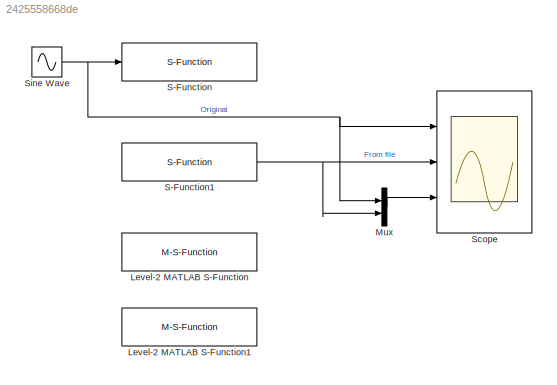
MODEL slx_2425558668de
KIND model
BLOCK [M-S-Function] Level-2 MATLAB S-Function
  Commented = on
  FunctionName = filesink_msfun
  Parameters = 'testfile'
  Ports = [1]
BLOCK [M-S-Function] Level-2 MATLAB S-Function1
  Commented = on
  FunctionName = filesource_msfun
  Parameters = 'testfile' 0
  Ports = [0, 1]
BLOCK [Mux] Mux
  DisplayOption = bar
  Inputs = 2
  Ports = [2, 1]
BLOCK [S-Function] S-Function
  EnableBusSupport = off
  FunctionName = filesink_sfun
  Parameters = 'testfile'
  Ports = [1]
BLOCK [S-Function] S-Function1
  EnableBusSupport = off
  FunctionName = filesource_sfun
  Parameters = 'testfile' 0
  Ports = [0, 1]
BLOCK [Scope] Scope
  DataFormat = StructureWithTime
  Floating = off
  NumInputPorts = 3
  Ports = [3]
  SampleTime = 0
  ShowLegends = off
  TimeRange = 10
  YMax = 5~5~5
  YMin = -5~-5~-5
BLOCK [Sin] Sine Wave
  Ports = [0, 1]
  SampleTime = 0
LINE Mux:1 -> Scope:3
NET S-Function1:1 -> Mux:2, Scope:2
NET Sine Wave:1 -> Mux:1, S-Function:1, Scope:1
note: NET lines group one-source signal fan-out (src -> all destinations, sorted); 1:1 wires keep LINE
